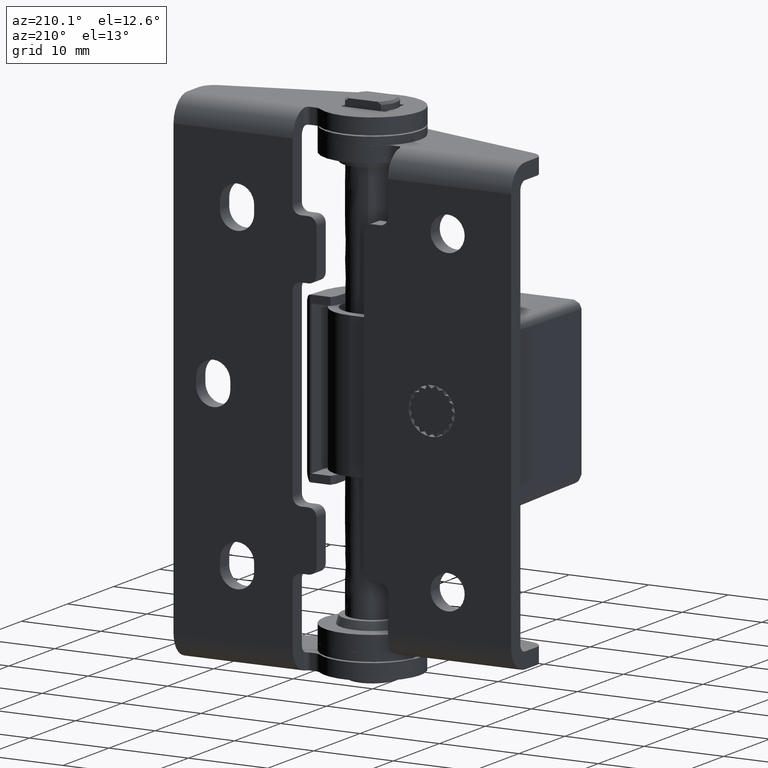
[diagram: clean part render]
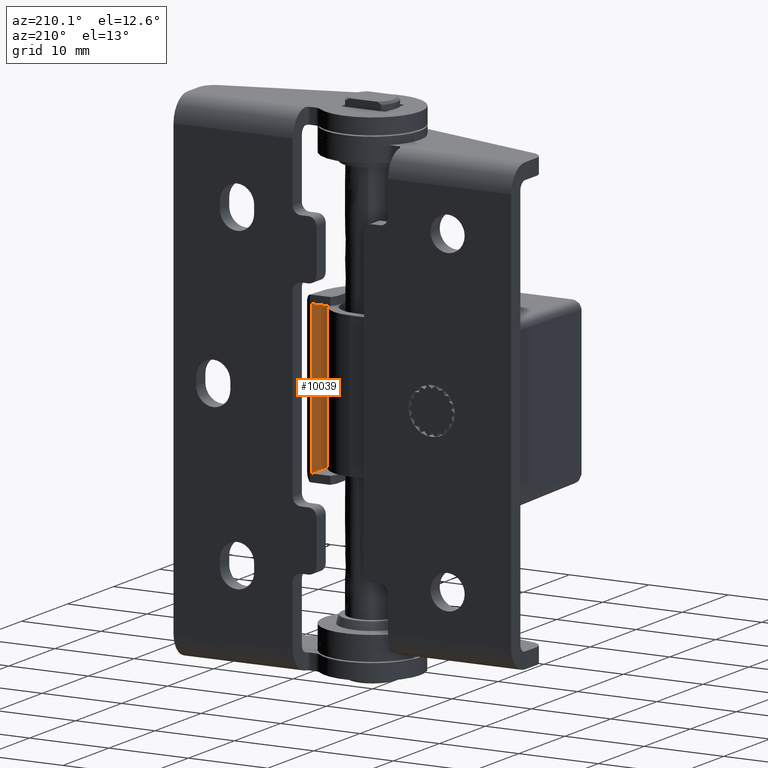
[diagram: same view with one face highlighted and labeled with its STEP entity id]
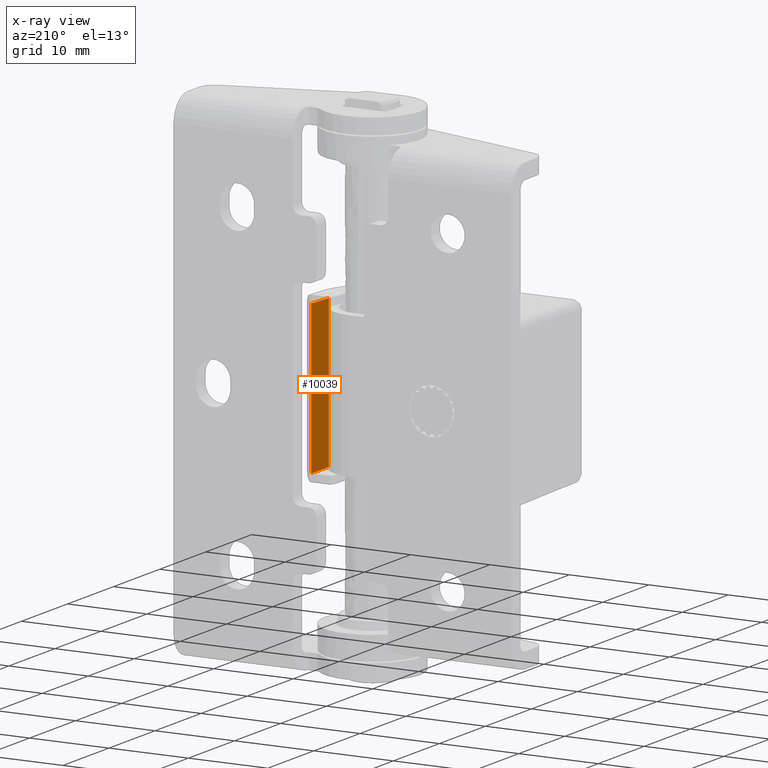
[diagram: x-ray of the same camera — body ghosted, the highlighted face saturated]
A machine part, auxiliary view. The second image highlights one B-rep face of the part: STEP entity #10039.
The next image is the same camera in x-ray: the body ghosted, the highlighted face saturated — about 0% of this face is hidden behind the body in this view.
In plain terms, the highlighted face is a freeform B-spline surface patch.
Its self-contained STEP definition (entity closure, byte-faithful):
#9783=CARTESIAN_POINT('',(5.500000000000200,0.0,40.781651885810042));
#9784=VERTEX_POINT('',#9783);
#9882=CARTESIAN_POINT('',(5.500000000000200,3.800000000000000,40.909168664338146));
#9883=VERTEX_POINT('',#9882);
#9889=CARTESIAN_POINT('',(5.500000000000200,3.800000000000000,40.909168664338146));
#9890=CARTESIAN_POINT('',(5.500000000000200,0.0,40.781651885810042));
#9891=QUASI_UNIFORM_CURVE('',1,(#9889,#9890),.UNSPECIFIED.,.F.,.U.);
#9892=EDGE_CURVE('',#9883,#9784,#9891,.T.);
#9902=CARTESIAN_POINT('',(5.500000000000200,3.800000000000000,21.949999999999999));
#9903=VERTEX_POINT('',#9902);
#9999=CARTESIAN_POINT('',(5.500000000000200,0.0,21.949999999999999));
#10000=VERTEX_POINT('',#9999);
#10012=CARTESIAN_POINT('',(5.500000000000200,3.800000000000000,21.949999999999999));
#10013=CARTESIAN_POINT('',(5.500000000000200,0.0,21.949999999999999));
#10014=QUASI_UNIFORM_CURVE('',1,(#10012,#10013),.UNSPECIFIED.,.F.,.U.);
#10015=EDGE_CURVE('',#9903,#10000,#10014,.T.);
#10020=CARTESIAN_POINT('',(5.500000000000200,-0.189809992634863,21.002989561962849));
#10021=CARTESIAN_POINT('',(5.500000000000200,-0.189809992634863,41.856179610899822));
#10022=CARTESIAN_POINT('',(5.500000000000200,3.989810094558805,21.002989561962849));
#10023=CARTESIAN_POINT('',(5.500000000000200,3.989810094558805,41.856179610899822));
#10024=B_SPLINE_SURFACE_WITH_KNOTS('',1,1,((#10020,#10022),(#10021,#10023)),.UNSPECIFIED.,.F.,.F.,.U.,(2,2),(2,2),(0.0,20.853190048936970),(0.0,4.179620087193668),.UNSPECIFIED.);
#10025=CARTESIAN_POINT('',(5.500000000000200,0.0,40.781651885810042));
#10026=CARTESIAN_POINT('',(5.500000000000200,0.0,21.949999999999999));
#10027=QUASI_UNIFORM_CURVE('',1,(#10025,#10026),.UNSPECIFIED.,.F.,.U.);
#10028=EDGE_CURVE('',#9784,#10000,#10027,.T.);
#10029=ORIENTED_EDGE('',*,*,#10028,.F.);
#10030=ORIENTED_EDGE('',*,*,#9892,.F.);
#10031=CARTESIAN_POINT('',(5.500000000000200,3.800000000000000,21.949999999999999));
#10032=CARTESIAN_POINT('',(5.500000000000200,3.800000000000000,40.909168664338146));
#10033=QUASI_UNIFORM_CURVE('',1,(#10031,#10032),.UNSPECIFIED.,.F.,.U.);
#10034=EDGE_CURVE('',#9903,#9883,#10033,.T.);
#10035=ORIENTED_EDGE('',*,*,#10034,.F.);
#10036=ORIENTED_EDGE('',*,*,#10015,.T.);
#10037=EDGE_LOOP('',(#10029,#10030,#10035,#10036));
#10038=FACE_OUTER_BOUND('',#10037,.T.);
#10039=ADVANCED_FACE('',(#10038),#10024,.T.);